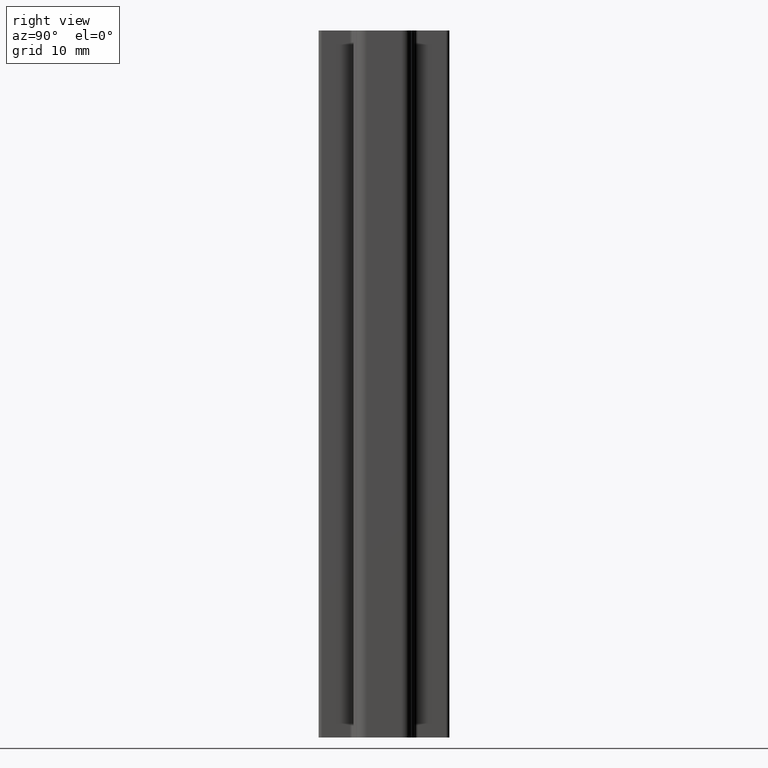
[diagram: clean part render]
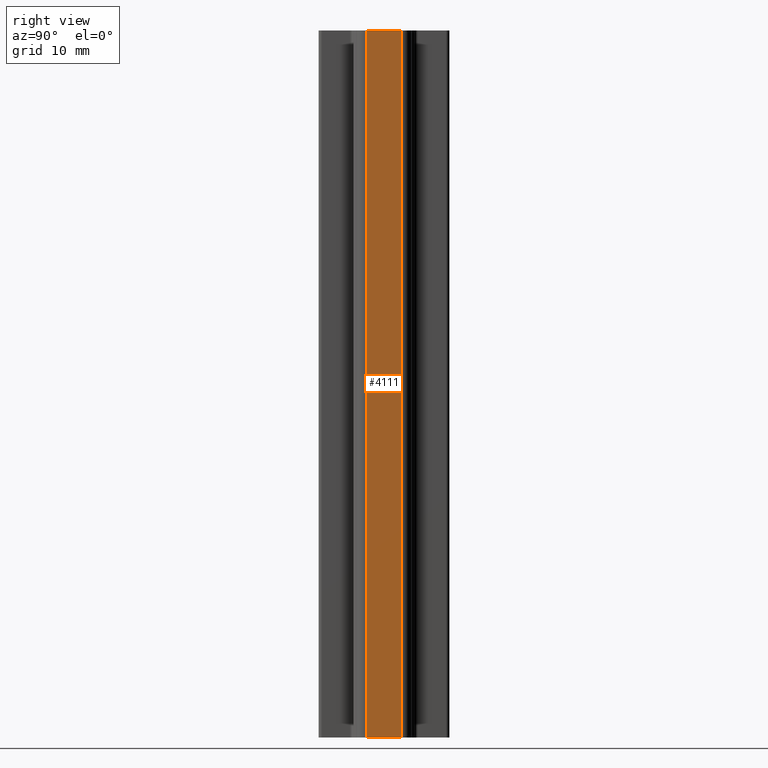
[diagram: same view with one face highlighted and labeled with its STEP entity id]
A machine part, right view. The second image highlights one B-rep face of the part: STEP entity #4111.
In plain terms, the highlighted planar face has unit normal (1, -0, 0).
Its self-contained STEP definition (entity closure, byte-faithful):
#105=FACE_OUTER_BOUND('',#307,.T.);
#307=EDGE_LOOP('',(#2979,#2980,#2981,#2982));
#688=LINE('',#5996,#1288);
#690=LINE('',#6000,#1290);
#691=LINE('',#6002,#1291);
#692=LINE('',#6003,#1292);
#1288=VECTOR('',#4899,10.);
#1290=VECTOR('',#4903,10.);
#1291=VECTOR('',#4904,10.);
#1292=VECTOR('',#4905,10.);
#1799=VERTEX_POINT('',#5993);
#1800=VERTEX_POINT('',#5995);
#1801=VERTEX_POINT('',#5999);
#1802=VERTEX_POINT('',#6001);
#2288=EDGE_CURVE('',#1800,#1799,#688,.T.);
#2290=EDGE_CURVE('',#1799,#1801,#690,.T.);
#2291=EDGE_CURVE('',#1802,#1801,#691,.T.);
#2292=EDGE_CURVE('',#1802,#1800,#692,.T.);
#2979=ORIENTED_EDGE('',*,*,#2290,.T.);
#2980=ORIENTED_EDGE('',*,*,#2291,.F.);
#2981=ORIENTED_EDGE('',*,*,#2292,.T.);
#2982=ORIENTED_EDGE('',*,*,#2288,.T.);
#3909=PLANE('',#4336);
#4111=ADVANCED_FACE('',(#105),#3909,.T.);
#4336=AXIS2_PLACEMENT_3D('',#5998,#4901,#4902);
#4899=DIRECTION('',(0.,0.,1.));
#4901=DIRECTION('center_axis',(1.,-2.90032403144787E-14,0.));
#4902=DIRECTION('ref_axis',(0.,0.,-1.));
#4903=DIRECTION('',(-2.90032403144787E-14,-1.,0.));
#4904=DIRECTION('',(0.,0.,1.));
#4905=DIRECTION('',(2.90032403144787E-14,1.,0.));
#5993=CARTESIAN_POINT('',(1166.43776097288,1718.62214471148,100.));
#5995=CARTESIAN_POINT('',(1166.43776097288,1718.62214471148,0.));
#5996=CARTESIAN_POINT('',(1166.43776097288,1718.62214471148,0.));
#5998=CARTESIAN_POINT('Origin',(1166.43776097288,1718.62214471148,0.));
#5999=CARTESIAN_POINT('',(1166.43776097288,1713.72239745528,100.));
#6000=CARTESIAN_POINT('',(1166.43776097288,1713.72239745528,100.));
#6001=CARTESIAN_POINT('',(1166.43776097288,1713.72239745528,0.));
#6002=CARTESIAN_POINT('',(1166.43776097288,1713.72239745528,0.));
#6003=CARTESIAN_POINT('',(1166.43776097288,1713.72239745528,0.));